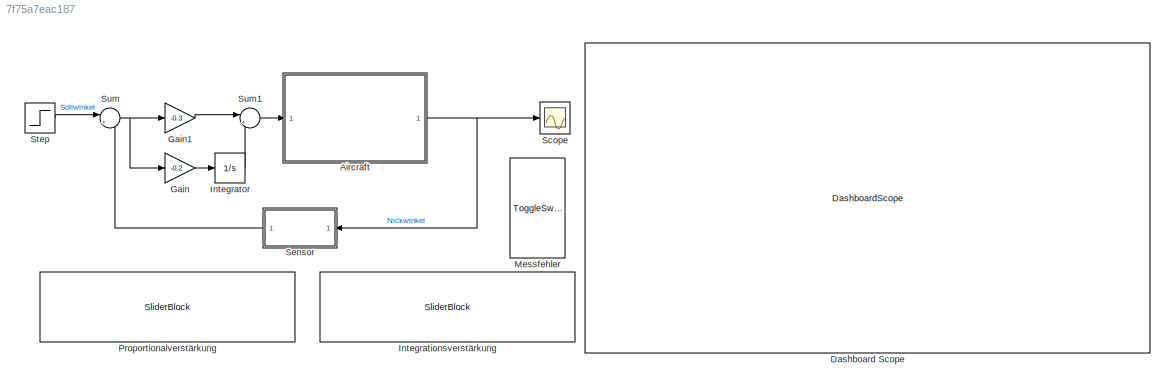
MODEL slx_7f75a7eac187
KIND model
CONFIG AbsTol = auto
CONFIG EnableMultiTasking = off
CONFIG FixedStep = auto
CONFIG MaxStep = auto
CONFIG MinStep = auto
CONFIG RelTol = 1e-3
CONFIG SampleTimeConstraint = Unconstrained
CONFIG SolverName = VariableStepAuto
CONFIG StartTime = 0.0
CONFIG StopTime = 100
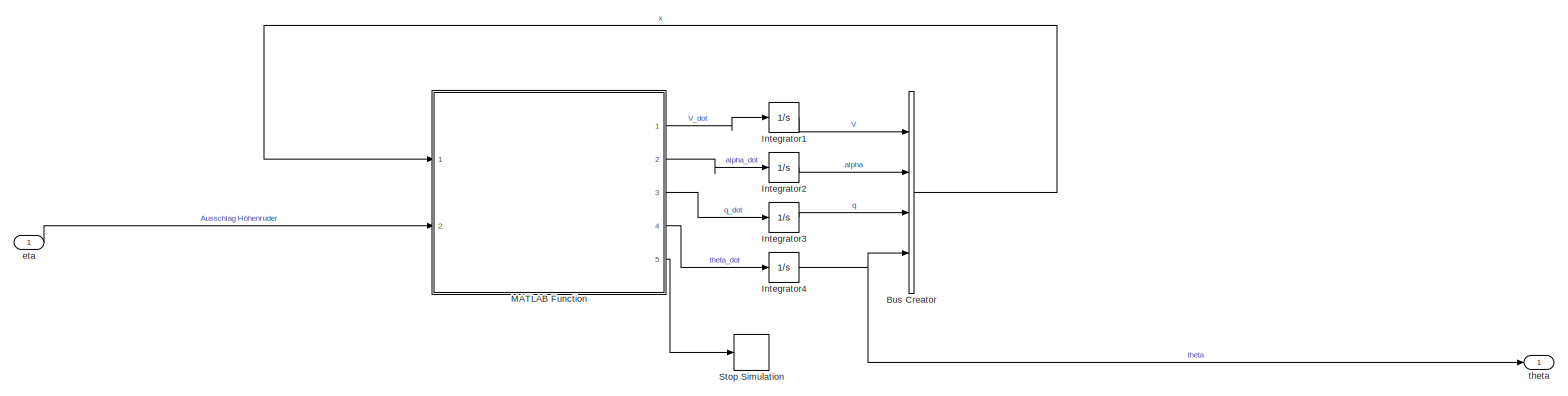
[diagram: Aircraft - part 1/1, most of the canvas]
BLOCK [SubSystem] Aircraft
  Ports = [1, 1]
  RequestExecContextInheritance = off
BLOCK [BusCreator] Aircraft/Bus Creator
  DisplayOption = bar
  InheritFromInputs = on
  Inputs = 4
  Ports = [4, 1]
BLOCK [Integrator] Aircraft/Integrator1
  InitialCondition = 44.872852763976020
  Ports = [1, 1]
BLOCK [Integrator] Aircraft/Integrator2
  InitialCondition = 0.049300445857312
  Ports = [1, 1]
BLOCK [Integrator] Aircraft/Integrator3
  Ports = [1, 1]
BLOCK [Integrator] Aircraft/Integrator4
  InitialCondition = 0.049807151144250
  Ports = [1, 1]
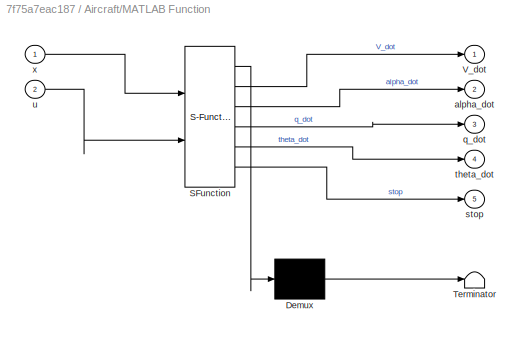
BLOCK [SubSystem] Aircraft/MATLAB Function
  ErrorFcn = Stateflow.Translate.translate
  PermitHierarchicalResolution = ExplicitOnly
  Ports = [2, 5]
  RequestExecContextInheritance = off
  SFBlockType = MATLAB Function
  TreatAsAtomicUnit = on
BLOCK [Demux] Aircraft/MATLAB Function/ Demux 
  Outputs = 1
  Ports = [1, 1]
BLOCK [S-Function] Aircraft/MATLAB Function/ SFunction 
  EnableBusSupport = on
  FunctionName = sf_sfun
  PortCounts = [2 6]
  Ports = [2, 6]
  SFcnIsStateOwnerBlock = off
  SFunctionDeploymentMode = off
  Tag = Stateflow S-Function 2
BLOCK [Terminator] Aircraft/MATLAB Function/ Terminator 
BLOCK [Outport] Aircraft/MATLAB Function/V_dot
BLOCK [Outport] Aircraft/MATLAB Function/alpha_dot
  Port = 2
BLOCK [Outport] Aircraft/MATLAB Function/q_dot
  Port = 3
BLOCK [Outport] Aircraft/MATLAB Function/stop
  Port = 5
BLOCK [Outport] Aircraft/MATLAB Function/theta_dot
  Port = 4
BLOCK [Inport] Aircraft/MATLAB Function/u
  Port = 2
BLOCK [Inport] Aircraft/MATLAB Function/x
BLOCK [Stop] Aircraft/Stop Simulation
BLOCK [Inport] Aircraft/eta
BLOCK [Outport] Aircraft/theta
BLOCK [DashboardScope] Dashboard Scope
BLOCK [Gain] Gain
  Gain = -0.2
BLOCK [Gain] Gain1
  Gain = -0.3
BLOCK [SliderBlock] Integrationsverstärkung
  LabelPosition = Hide
  ScaleMax = 0.2
  ScaleMin = -1
BLOCK [Integrator] Integrator
  Ports = [1, 1]
BLOCK [ToggleSwitchBlock] Messfehler
  LabelPosition = Hide
BLOCK [SliderBlock] Proportionalverstärkung
  LabelPosition = Hide
  ScaleMax = 0.03
  ScaleMin = -1.3
BLOCK [Scope] Scope
  Floating = off
  NumInputPorts = 1
  Ports = [1]
  ScopeSpecificationString = Simulink.scopes.TimeScopeBlockCfg('CurrentConfiguration', extmgr.ConfigurationSet(extmgr.Configuration('Core','General UI',true),extmgr.Configuration('Core','Source UI',true),extmgr.Configuration('Sources','WiredSimulink',true),extmgr.Configuration('Visuals','Time Domain',true),extmgr.Configuration('Tools','Plot Navigation',true),extmgr.Configuration('Tools','Measurements',true)),'Version','2022a'...<+1ch>
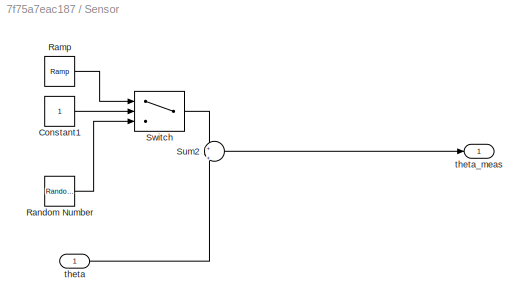
BLOCK [SubSystem] Sensor
  Ports = [1, 1]
  RequestExecContextInheritance = off
BLOCK [Constant] Sensor/Constant1
BLOCK [Reference] Sensor/Ramp  REF=simulink/Sources/Ramp
  Ports = [0, 1]
  SourceBlock = simulink/Sources/Ramp
  SourceProductBaseCode = SL
  SourceType = Ramp
BLOCK [RandomNumber] Sensor/Random Number
  SampleTime = 0.1
  Seed = 23341
  Variance = 1e-6
BLOCK [Sum] Sensor/Sum2
  Inputs = +||+
  Ports = [2, 1]
BLOCK [Switch] Sensor/Switch
  Criteria = u2 > Threshold
  InputSameDT = off
  SaturateOnIntegerOverflow = off
BLOCK [Inport] Sensor/theta
BLOCK [Outport] Sensor/theta_meas
BLOCK [Step] Step
  After = 5*pi/180
  Before = 0.049807151144250
  SampleTime = 0
  Time = 10
BLOCK [Sum] Sum
  Inputs = |+-
  Ports = [2, 1]
BLOCK [Sum] Sum1
  Inputs = |++
  Ports = [2, 1]
LINE Aircraft/Bus Creator:1 -> Aircraft/MATLAB Function:1
LINE Aircraft/Integrator1:1 -> Aircraft/Bus Creator:1
LINE Aircraft/Integrator2:1 -> Aircraft/Bus Creator:2
LINE Aircraft/Integrator3:1 -> Aircraft/Bus Creator:3
NET Aircraft/Integrator4:1 -> Aircraft/Bus Creator:4, Aircraft/theta:1
LINE Aircraft/MATLAB Function:1 -> Aircraft/Integrator1:1
LINE Aircraft/MATLAB Function:2 -> Aircraft/Integrator2:1
LINE Aircraft/MATLAB Function:3 -> Aircraft/Integrator3:1
LINE Aircraft/MATLAB Function:4 -> Aircraft/Integrator4:1
LINE Aircraft/MATLAB Function:5 -> Aircraft/Stop Simulation:1
LINE Aircraft/eta:1 -> Aircraft/MATLAB Function:2
NET Aircraft:1 -> Scope:1, Sensor:1
LINE Gain1:1 -> Sum1:1
LINE Gain:1 -> Integrator:1
LINE Integrator:1 -> Sum1:2
LINE Sensor/Constant1:1 -> Sensor/Switch:2
LINE Sensor/Ramp:1 -> Sensor/Switch:1
LINE Sensor/Random Number:1 -> Sensor/Switch:3
LINE Sensor/Sum2:1 -> Sensor/theta_meas:1
LINE Sensor/Switch:1 -> Sensor/Sum2:1
LINE Sensor/theta:1 -> Sensor/Sum2:2
LINE Sensor:1 -> Sum:2
LINE Step:1 -> Sum:1
LINE Sum1:1 -> Aircraft:1
NET Sum:1 -> Gain1:1, Gain:1
note: NET lines group one-source signal fan-out (src -> all destinations, sorted); 1:1 wires keep LINE
CHART Aircraft/MATLAB Function states=1 transitions=1
  STATE_LABEL 'eML_blk_kernel()'
  STATE_LABEL 'SCRIPT:\nfunction [V_dot, alpha_dot, q_dot, theta_dot, stop]= poly_long_dyn(x,u)\n\n\n\n% fixed trim values\ndelta0  = 14.33;   % percent\n            \n\n\neta_trim = 0.048920000000000;\n\nX = [x(1); x(2); x(3); x(4)];\nU = [u + eta_trim; delta0];\n\n\n\n%% Polynomial Dynamics\nf1 = @(V,alpha,q,theta,eta,F) +1.233e-8*V.^4.*q.^2         + 4.853e-9.*alpha.^3.*F.^3    + 3.705e-5*V.^3.*alpha.*q      ...\n              ...<+3608ch>'
CHART  states=0 transitions=0
